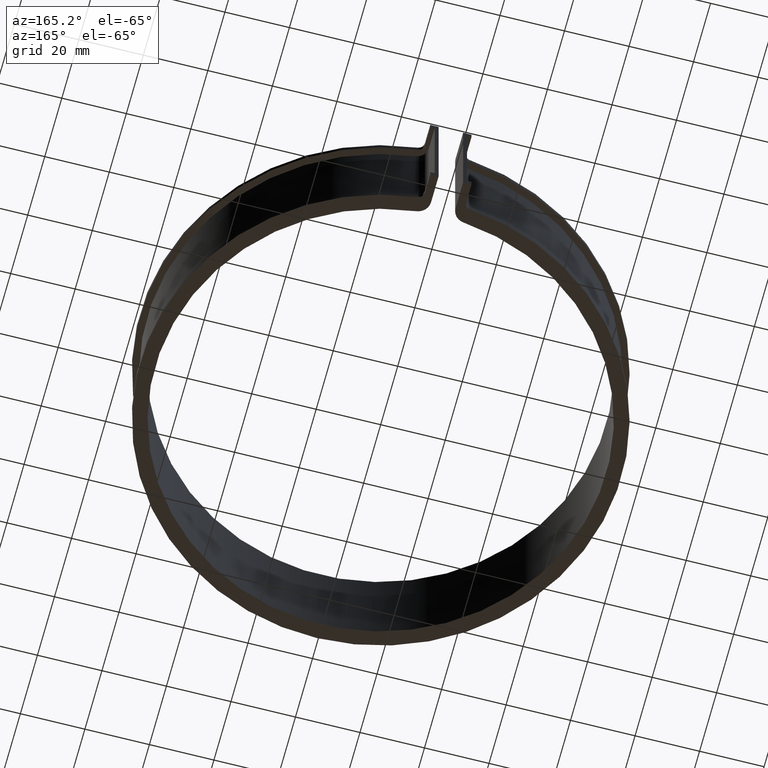
[diagram: clean part render]
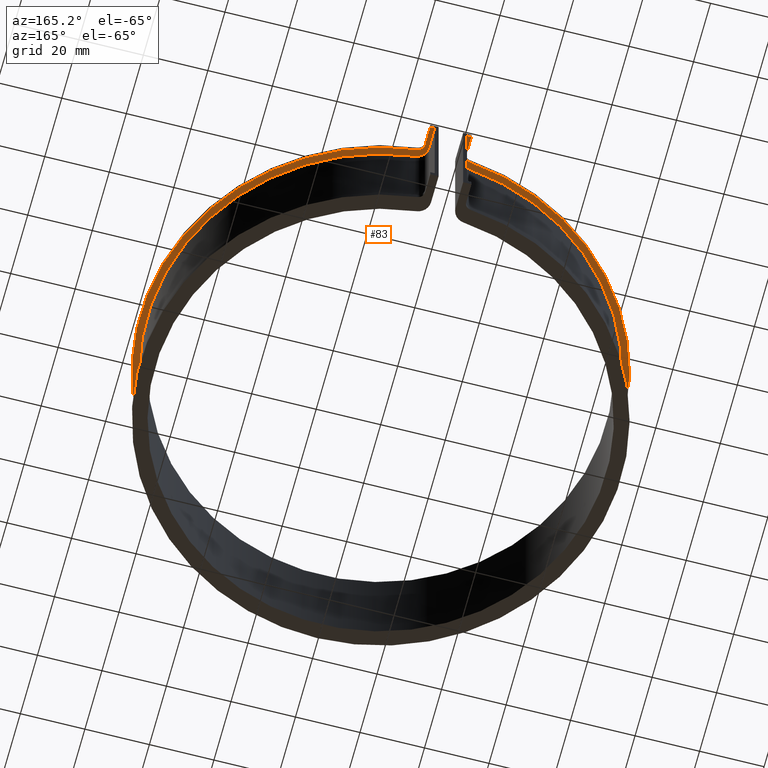
[diagram: same view with one face highlighted and labeled with its STEP entity id]
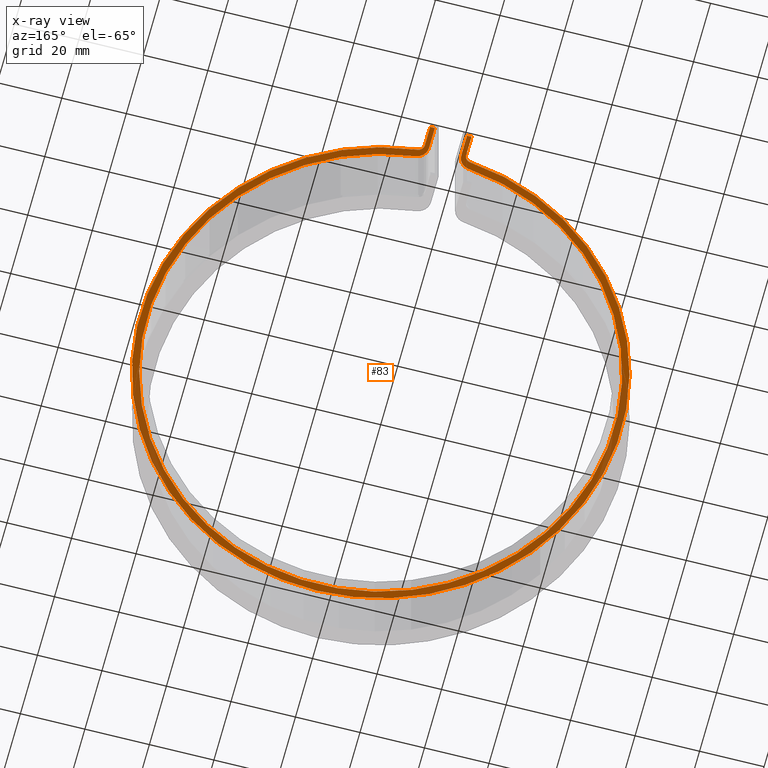
[diagram: x-ray of the same camera — body ghosted, the highlighted face saturated]
A machine part, auxiliary view. The second image highlights one B-rep face of the part: STEP entity #83.
The next image is the same camera in x-ray: the body ghosted, the highlighted face saturated — about 14% of this face is hidden behind the body in this view.
In plain terms, the highlighted planar face has unit normal (0, 0, -1).
Its self-contained STEP definition (entity closure, byte-faithful):
#83 = ADVANCED_FACE( '', ( #118 ), #119, .T. );
#118 = FACE_OUTER_BOUND( '', #170, .T. );
#119 = PLANE( '', #171 );
#170 = EDGE_LOOP( '', ( #282, #283, #284, #285, #286, #287, #288, #289, #290, #291, #292, #293 ) );
#171 = AXIS2_PLACEMENT_3D( '', #294, #295, #296 );
#282 = ORIENTED_EDGE( '', *, *, #445, .F. );
#283 = ORIENTED_EDGE( '', *, *, #469, .T. );
#284 = ORIENTED_EDGE( '', *, *, #470, .T. );
#285 = ORIENTED_EDGE( '', *, *, #471, .T. );
#286 = ORIENTED_EDGE( '', *, *, #472, .T. );
#287 = ORIENTED_EDGE( '', *, *, #473, .T. );
#288 = ORIENTED_EDGE( '', *, *, #474, .F. );
#289 = ORIENTED_EDGE( '', *, *, #475, .F. );
#290 = ORIENTED_EDGE( '', *, *, #476, .F. );
#291 = ORIENTED_EDGE( '', *, *, #477, .F. );
#292 = ORIENTED_EDGE( '', *, *, #478, .F. );
#293 = ORIENTED_EDGE( '', *, *, #467, .F. );
#294 = CARTESIAN_POINT( '', ( -8.40000000000000, 76.1380325461592, 0.000000000000000 ) );
#295 = DIRECTION( '', ( 0.000000000000000, 0.000000000000000, -1.00000000000000 ) );
#296 = DIRECTION( '', ( 0.000000000000000, -1.00000000000000, 0.000000000000000 ) );
#445 = EDGE_CURVE( '', #532, #534, #535, .T. );
#467 = EDGE_CURVE( '', #534, #572, #573, .T. );
#469 = EDGE_CURVE( '', #532, #575, #576, .T. );
#470 = EDGE_CURVE( '', #575, #577, #578, .T. );
#471 = EDGE_CURVE( '', #577, #579, #580, .T. );
#472 = EDGE_CURVE( '', #579, #581, #582, .T. );
#473 = EDGE_CURVE( '', #581, #583, #584, .T. );
#474 = EDGE_CURVE( '', #585, #583, #586, .T. );
#475 = EDGE_CURVE( '', #587, #585, #588, .T. );
#476 = EDGE_CURVE( '', #589, #587, #590, .T. );
#477 = EDGE_CURVE( '', #591, #589, #592, .T. );
#478 = EDGE_CURVE( '', #572, #591, #593, .T. );
#532 = VERTEX_POINT( '', #660 );
#534 = VERTEX_POINT( '', #663 );
#535 = LINE( '', #664, #665 );
#572 = VERTEX_POINT( '', #716 );
#573 = LINE( '', #717, #718 );
#575 = VERTEX_POINT( '', #721 );
#576 = LINE( '', #722, #723 );
#577 = VERTEX_POINT( '', #724 );
#578 = CIRCLE( '', #725, 3.69999999999999 );
#579 = VERTEX_POINT( '', #726 );
#580 = CIRCLE( '', #727, 72.4000000000000 );
#581 = VERTEX_POINT( '', #728 );
#582 = CIRCLE( '', #729, 3.70000000000000 );
#583 = VERTEX_POINT( '', #730 );
#584 = LINE( '', #731, #732 );
#585 = VERTEX_POINT( '', #733 );
#586 = LINE( '', #734, #735 );
#587 = VERTEX_POINT( '', #736 );
#588 = LINE( '', #737, #738 );
#589 = VERTEX_POINT( '', #739 );
#590 = CIRCLE( '', #740, 2.00000000000000 );
#591 = VERTEX_POINT( '', #741 );
#592 = CIRCLE( '', #742, 74.6000000000000 );
#593 = CIRCLE( '', #743, 2.00000000000000 );
#660 = CARTESIAN_POINT( '', ( -5.00000000000001, 82.4000000000000, 0.000000000000000 ) );
#663 = CARTESIAN_POINT( '', ( -6.40000000000001, 82.4000000000000, 0.000000000000000 ) );
#664 = CARTESIAN_POINT( '', ( -3.80000000000000, 82.4000000000000, 0.000000000000000 ) );
#665 = VECTOR( '', #821, 1000.00000000000 );
#716 = CARTESIAN_POINT( '', ( -6.40000000000000, 76.1380325461592, 0.000000000000000 ) );
#717 = CARTESIAN_POINT( '', ( -6.39999999999999, 82.4000000000000, 0.000000000000000 ) );
#718 = VECTOR( '', #857, 1000.00000000000 );
#721 = CARTESIAN_POINT( '', ( -4.99999999999999, 75.6010581936523, 0.000000000000000 ) );
#722 = CARTESIAN_POINT( '', ( -4.99999999999999, 82.4000000000000, 0.000000000000000 ) );
#723 = VECTOR( '', #859, 1000.00000000000 );
#724 = CARTESIAN_POINT( '', ( -8.27700394218134, 71.9253168622921, 0.000000000000000 ) );
#725 = AXIS2_PLACEMENT_3D( '', #860, #861, #862 );
#726 = CARTESIAN_POINT( '', ( 8.27700394218129, 71.9253168622921, 0.000000000000000 ) );
#727 = AXIS2_PLACEMENT_3D( '', #863, #864, #865 );
#728 = CARTESIAN_POINT( '', ( 5.00000000000000, 75.6010581936523, 0.000000000000000 ) );
#729 = AXIS2_PLACEMENT_3D( '', #866, #867, #868 );
#730 = CARTESIAN_POINT( '', ( 5.00000000000000, 82.4000000000000, 0.000000000000000 ) );
#731 = CARTESIAN_POINT( '', ( 5.00000000000000, 75.6010581936523, 0.000000000000000 ) );
#732 = VECTOR( '', #869, 1000.00000000000 );
#733 = CARTESIAN_POINT( '', ( 6.39999999999999, 82.4000000000000, 0.000000000000000 ) );
#734 = CARTESIAN_POINT( '', ( 6.39999999999999, 82.4000000000000, 0.000000000000000 ) );
#735 = VECTOR( '', #870, 1000.00000000000 );
#736 = CARTESIAN_POINT( '', ( 6.39999999999999, 76.1380325461592, 0.000000000000000 ) );
#737 = CARTESIAN_POINT( '', ( 6.39999999999999, 76.1380325461592, 0.000000000000000 ) );
#738 = VECTOR( '', #871, 1000.00000000000 );
#739 = CARTESIAN_POINT( '', ( 8.18067885117489, 74.1500943595754, 0.000000000000000 ) );
#740 = AXIS2_PLACEMENT_3D( '', #872, #873, #874 );
#741 = CARTESIAN_POINT( '', ( -8.18067885117495, 74.1500943595754, 0.000000000000000 ) );
#742 = AXIS2_PLACEMENT_3D( '', #875, #876, #877 );
#743 = AXIS2_PLACEMENT_3D( '', #878, #879, #880 );
#821 = DIRECTION( '', ( -1.00000000000000, 0.000000000000000, 0.000000000000000 ) );
#857 = DIRECTION( '', ( -6.00481203222741E-017, -1.00000000000000, 0.000000000000000 ) );
#859 = DIRECTION( '', ( -6.93889390390723E-017, -1.00000000000000, 0.000000000000000 ) );
#860 = CARTESIAN_POINT( '', ( -8.69999999999999, 75.6010581936523, 0.000000000000000 ) );
#861 = DIRECTION( '', ( 0.000000000000000, 0.000000000000000, -1.00000000000000 ) );
#862 = DIRECTION( '', ( 1.00000000000000, 1.65145674912992E-015, 0.000000000000000 ) );
#863 = CARTESIAN_POINT( '', ( -8.67361737988404E-016, 5.55111512312578E-014, 0.000000000000000 ) );
#864 = DIRECTION( '', ( 0.000000000000000, 0.000000000000000, 1.00000000000000 ) );
#865 = DIRECTION( '', ( 1.00000000000000, -4.16333634234434E-017, 0.000000000000000 ) );
#866 = CARTESIAN_POINT( '', ( 8.70000000000000, 75.6010581936523, 0.000000000000000 ) );
#867 = DIRECTION( '', ( 0.000000000000000, 0.000000000000000, -1.00000000000000 ) );
#868 = DIRECTION( '', ( -1.00000000000000, -1.49880108324396E-015, 0.000000000000000 ) );
#869 = DIRECTION( '', ( -6.93889390390723E-017, 1.00000000000000, 0.000000000000000 ) );
#870 = DIRECTION( '', ( -1.00000000000000, 0.000000000000000, 0.000000000000000 ) );
#871 = DIRECTION( '', ( 6.00481203222741E-017, 1.00000000000000, 0.000000000000000 ) );
#872 = CARTESIAN_POINT( '', ( 8.39999999999999, 76.1380325461592, 0.000000000000000 ) );
#873 = DIRECTION( '', ( 0.000000000000000, 0.000000000000000, -1.00000000000000 ) );
#874 = DIRECTION( '', ( -1.00000000000000, 0.000000000000000, 0.000000000000000 ) );
#875 = CARTESIAN_POINT( '', ( -1.73472347597681E-015, 2.77555756156289E-014, 0.000000000000000 ) );
#876 = DIRECTION( '', ( 0.000000000000000, 0.000000000000000, 1.00000000000000 ) );
#877 = DIRECTION( '', ( 1.00000000000000, 0.000000000000000, 0.000000000000000 ) );
#878 = CARTESIAN_POINT( '', ( -8.40000000000000, 76.1380325461592, 0.000000000000000 ) );
#879 = DIRECTION( '', ( 0.000000000000000, 0.000000000000000, -1.00000000000000 ) );
#880 = DIRECTION( '', ( 1.00000000000000, 0.000000000000000, 0.000000000000000 ) );